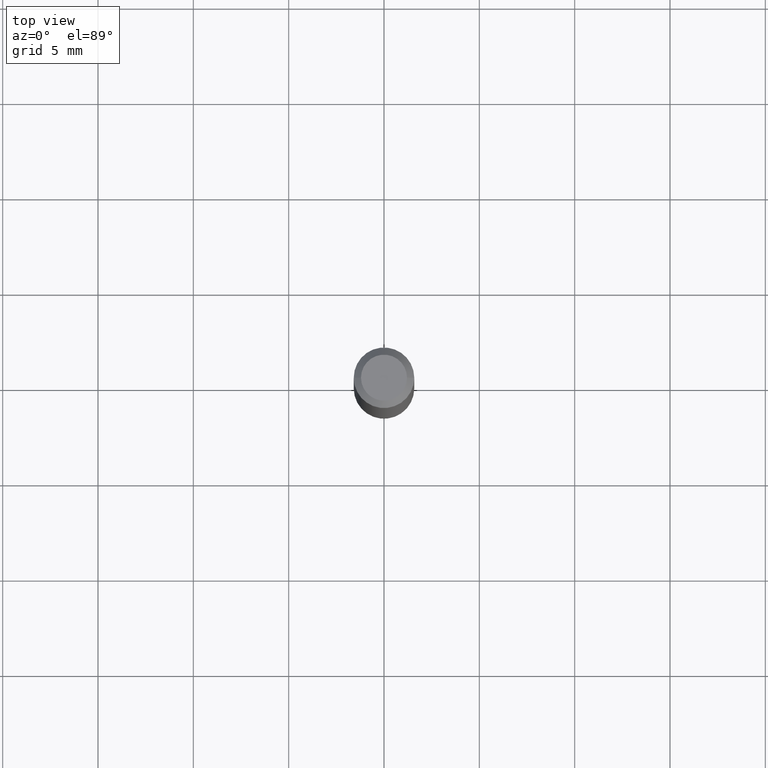
[diagram: clean part render]
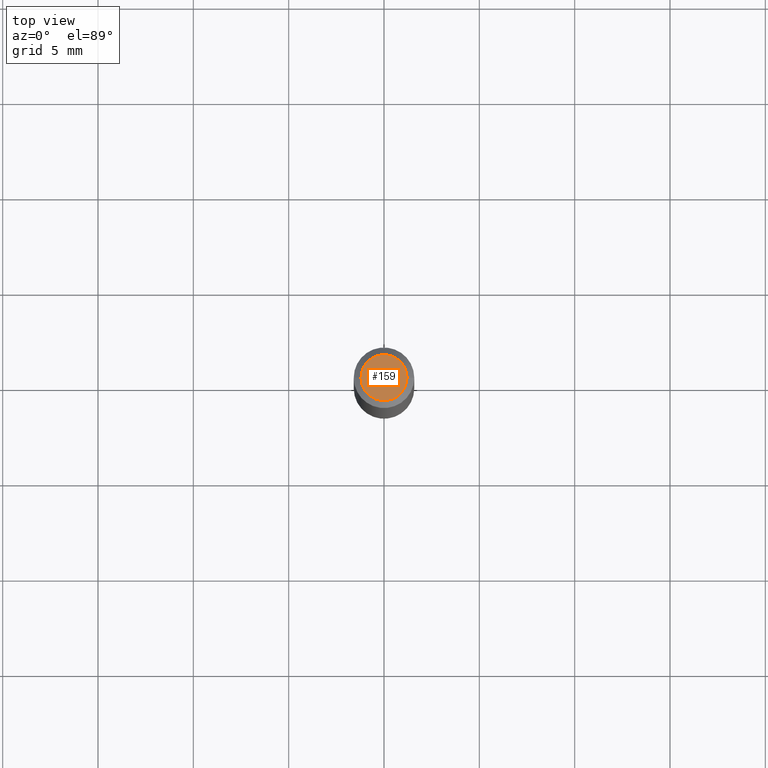
[diagram: same view with one face highlighted and labeled with its STEP entity id]
A machine part, top view. The second image highlights one B-rep face of the part: STEP entity #159.
In plain terms, the highlighted planar face has unit normal (0, -0, -1).
Its self-contained STEP definition (entity closure, byte-faithful):
#23 = CARTESIAN_POINT ( 'NONE',  ( 3.316907271900976096E-16, 0.04749999999999999362, -1.076740139133766305E-16 ) ) ;
#26 = CARTESIAN_POINT ( 'NONE',  ( -2.845124421204368749E-45, 4.062083637377592914E-31, 1.163426993633455566E-16 ) ) ;
#41 = VERTEX_POINT ( 'NONE', #84 ) ;
#67 = AXIS2_PLACEMENT_3D ( 'NONE', #288, #427, #204 ) ;
#84 = CARTESIAN_POINT ( 'NONE',  ( 0.04749999999999999362, -4.035134999187576651E-16, 1.163426993633481204E-16 ) ) ;
#91 = DIRECTION ( 'NONE',  ( 2.438088387897960049E-29, -3.491481338843145188E-15, -1.000000000000000000 ) ) ;
#142 = ORIENTED_EDGE ( 'NONE', *, *, #273, .T. ) ;
#159 = ADVANCED_FACE ( 'NONE', ( #386 ), #275, .F. ) ;
#171 = CIRCLE ( 'NONE', #326, 0.04749999999999999362 ) ;
#185 = VERTEX_POINT ( 'NONE', #387 ) ;
#204 = DIRECTION ( 'NONE',  ( 1.000000000000000000, -6.982962677686267499E-15, 4.884662768193073002E-29 ) ) ;
#229 = AXIS2_PLACEMENT_3D ( 'NONE', #23, #91, #351 ) ;
#273 = EDGE_CURVE ( 'NONE', #41, #185, #461, .T. ) ;
#275 = PLANE ( 'NONE',  #229 ) ;
#287 = EDGE_LOOP ( 'NONE', ( #373, #142 ) ) ;
#288 = CARTESIAN_POINT ( 'NONE',  ( -2.845124421204368749E-45, 4.062083637377592914E-31, 1.163426993633455566E-16 ) ) ;
#323 = DIRECTION ( 'NONE',  ( -2.445468806185136597E-29, 3.491481338843145583E-15, 1.000000000000000000 ) ) ;
#326 = AXIS2_PLACEMENT_3D ( 'NONE', #26, #323, #455 ) ;
#351 = DIRECTION ( 'NONE',  ( -1.000000000000000000, 6.982962677686265922E-15, -4.876176775795935793E-29 ) ) ;
#358 = EDGE_CURVE ( 'NONE', #185, #41, #171, .T. ) ;
#373 = ORIENTED_EDGE ( 'NONE', *, *, #358, .T. ) ;
#386 = FACE_OUTER_BOUND ( 'NONE', #287, .T. ) ;
#387 = CARTESIAN_POINT ( 'NONE',  ( -0.04749999999999999362, 3.578768372314212971E-16, 1.163426993633431407E-16 ) ) ;
#427 = DIRECTION ( 'NONE',  ( -2.445468806185136597E-29, 3.491481338843145583E-15, 1.000000000000000000 ) ) ;
#455 = DIRECTION ( 'NONE',  ( 1.000000000000000000, -6.982962677686267499E-15, 4.884662768193073002E-29 ) ) ;
#461 = CIRCLE ( 'NONE', #67, 0.04749999999999999362 ) ;